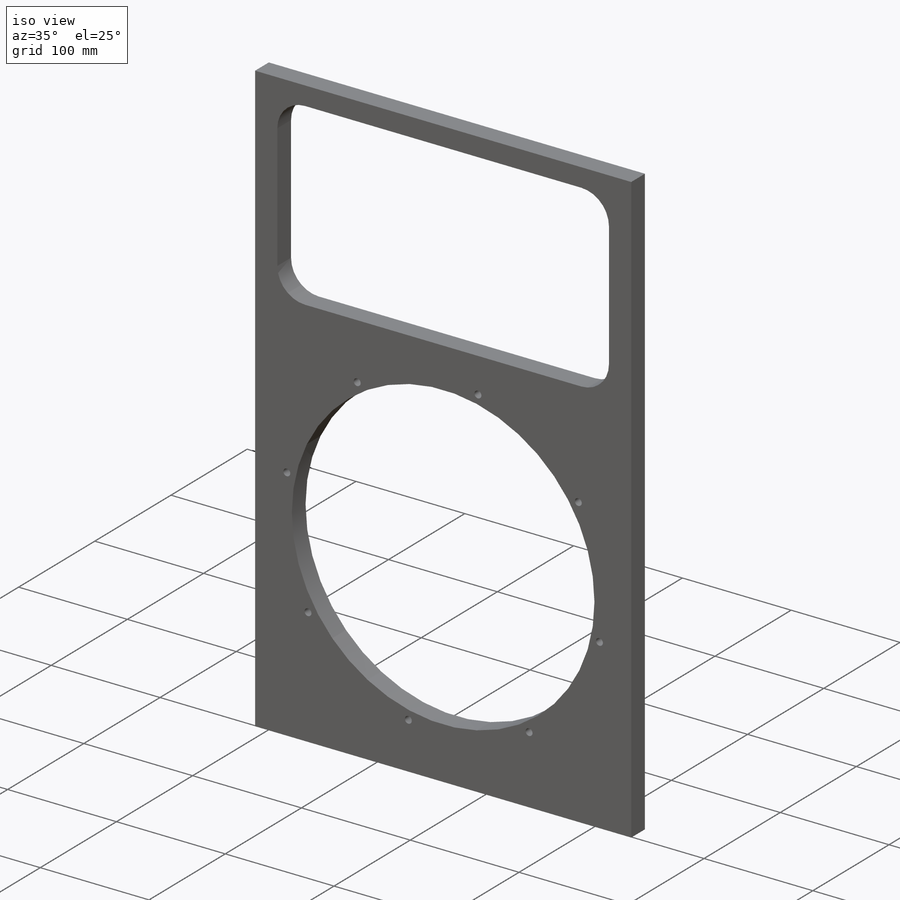
[diagram: iso view]
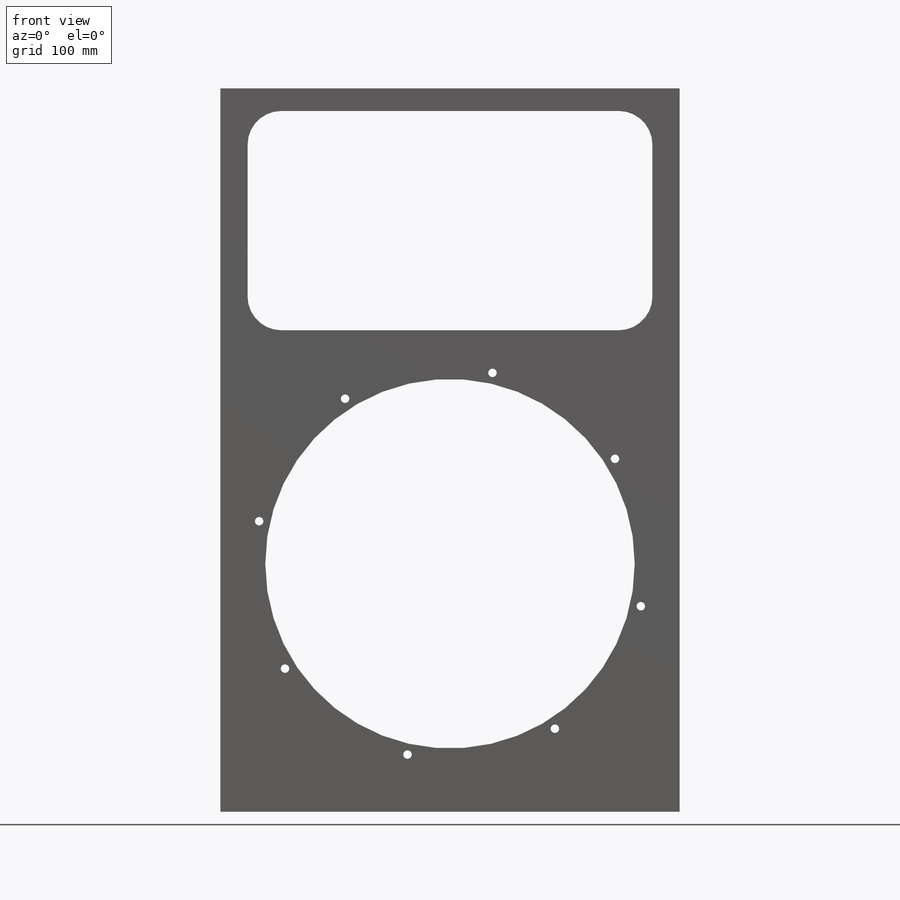
[diagram: front view]
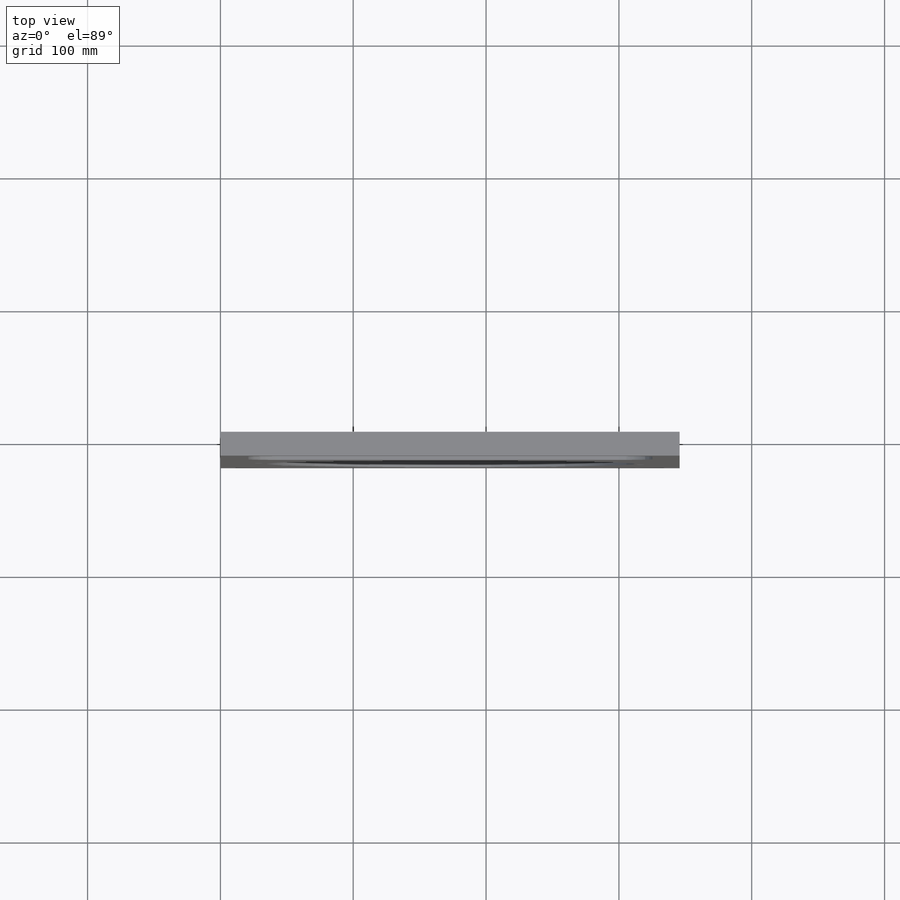
[diagram: top view]
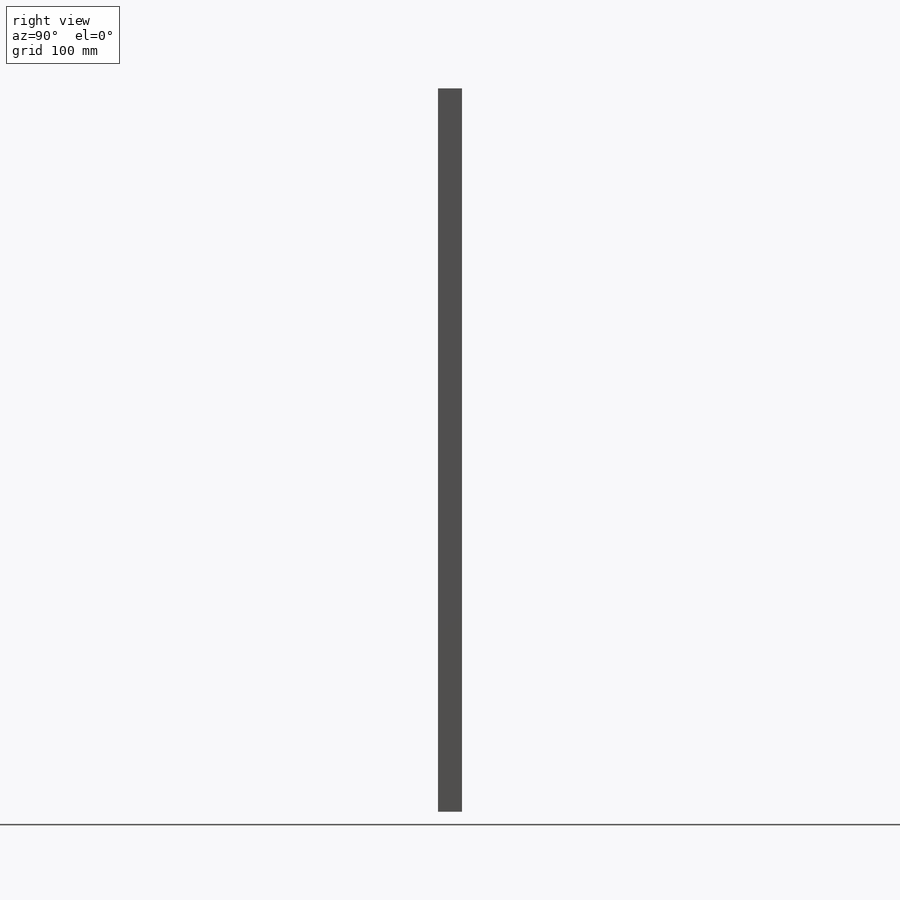
[diagram: right view]
SOLIDWORKS PART (.sldprt)
format: sldprt  version: not decoded by parser v0  size: 221,184 bytes
history: native  units: mm
features: sketch x5, cut_extrude x4, material x1, extrude x1 (+13 scaffold rows collapsed)
feature tree (24):
  scaffold x13  (default folders/planes/origin — collapsed)
  material  "Material <not specified>"
  sketch  "Sketch1"  dims[D1=345.7mm D2=544.6mm]
  extrude  "Boss-Extrude1"  Depth=18mm
  sketch  "Sketch2"  dims[D1=445.0mm D2=127.0mm D3=266.7mm D4=0.0mm]
  cut_extrude  "Cut-Extrude1"  [1 undecoded]
  sketch  "Sketch3"  dims[D2=278.13mm D1=0.0mm]
  cut_extrude  "Cut-Extrude2"  [1 undecoded]
  sketch  "Sketch4"  dims[D1=294.386mm D2=6.35mm D3=8.0]
  cut_extrude  "Cut-Extrude3"  [1 undecoded]
  sketch  "Sketch6"  dims[D5=25.4mm D1=304.8mm D2=165.1mm D3=0.0mm D4=0.0mm]
  cut_extrude  "Cut-Extrude4"  [1 undecoded]
decode coverage: 6 of 10 modeling features carry decoded parameters
note: 4 parameter values undecoded
summary: no parameter record found for 4 features
note: suppression state not decoded; provenance and decode notes live in map.json
